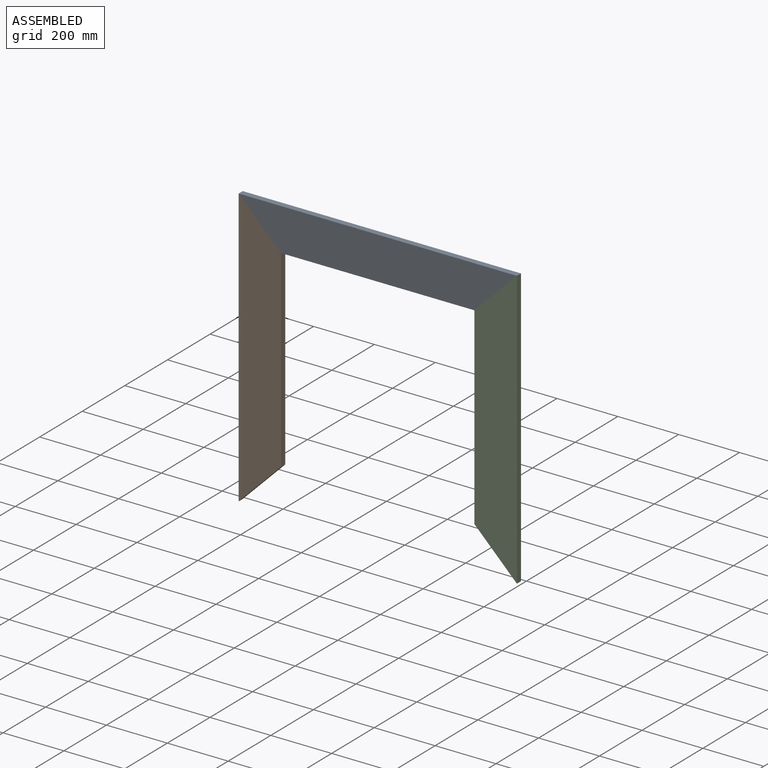
[diagram: assembled view]
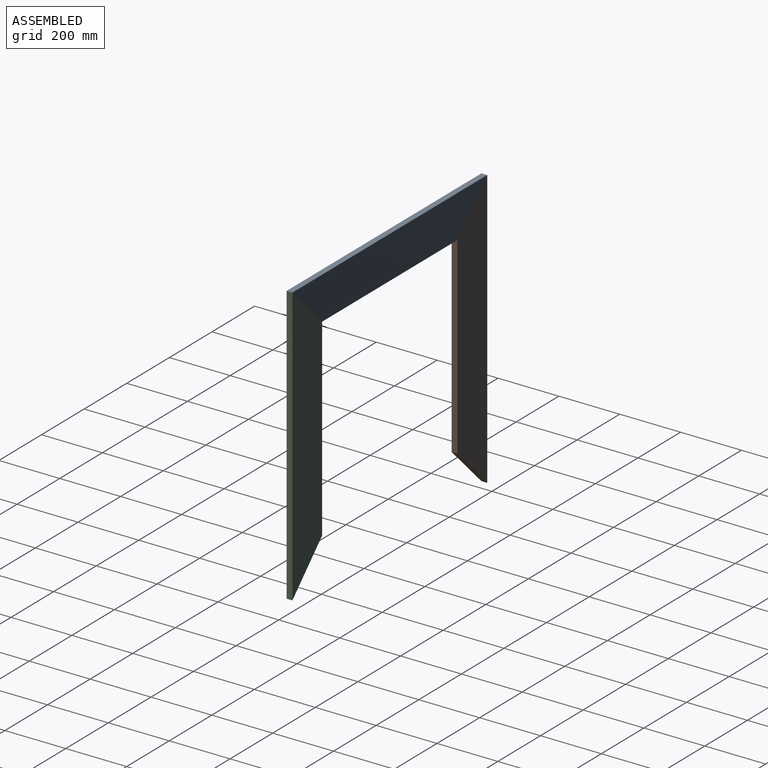
[diagram: assembled view, second angle]
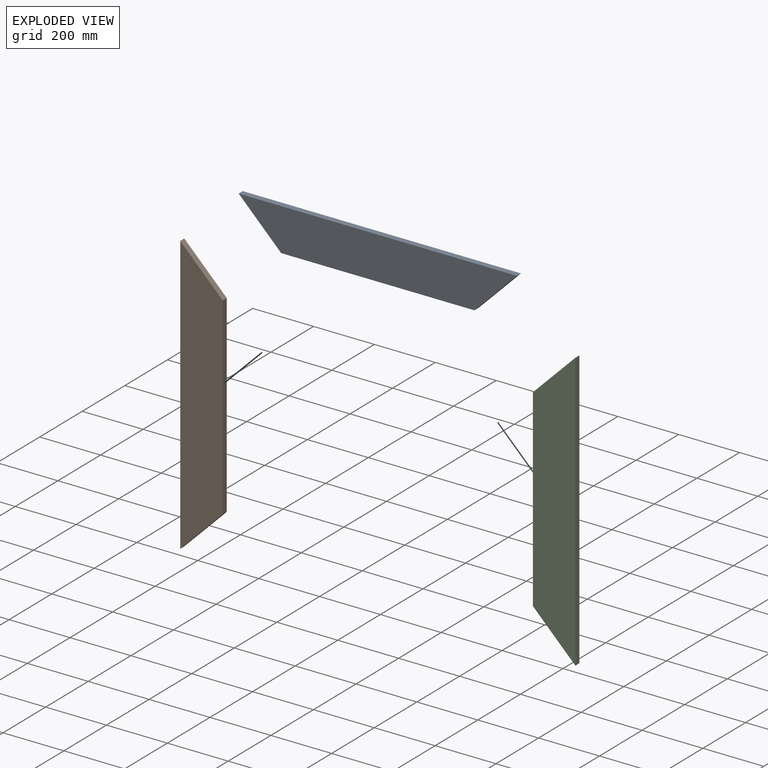
[diagram: exploded view]
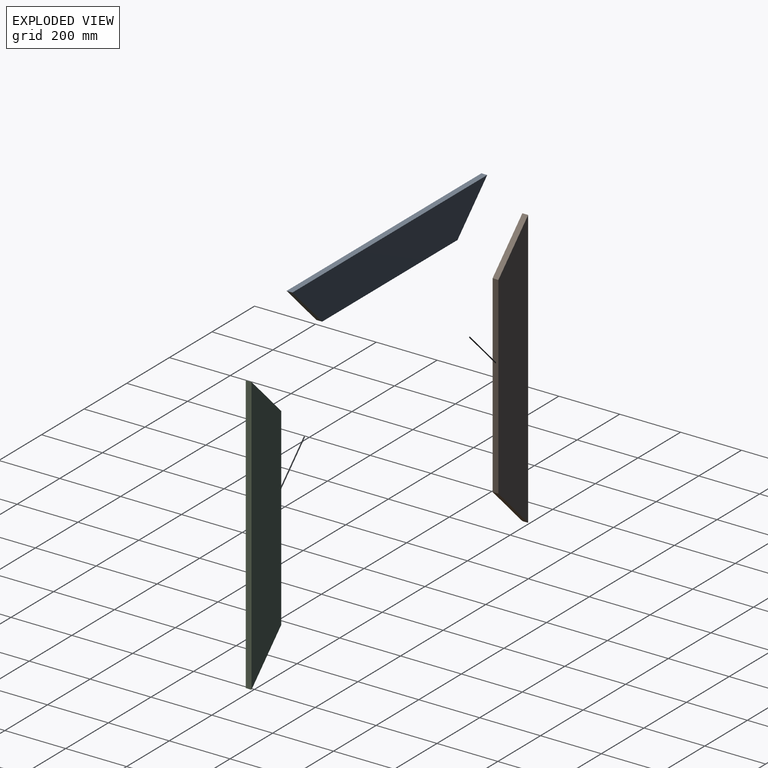
[diagram: exploded view, second angle]
ASSEMBLY  parts=3 mates=2
PART A: 6 faces, bbox 914.4x19.1x139.7 mm
  f0: plane 635x19.05mm, normal (0,0,1), area 12096.8mm2, adj f1,f3,f4,f5
  f1: plane 139.7x139.7mm, normal (-0.71,0,0.71), area 3763.6mm2, adj f0,f2,f4,f5
  f2: plane 914.4x19.05mm, normal (0,0,-1), area 17419.3mm2, adj f1,f3,f4,f5
  f3: plane 139.7x139.7mm, normal (0.71,0,0.71), area 3763.6mm2, adj f0,f2,f4,f5
  f4: plane 914.4x139.7mm, normal (0,1,0), area 108225.6mm2, adj f0,f1,f2,f3
  f5: plane 914.4x139.7mm, normal (0,-1,0), area 108225.6mm2, adj f0,f1,f2,f3
PART B: same geometry as A
PART C: same geometry as A
PLACE A rot(axis=(0,-1,0),180deg) t=(848.75,0,457.2)mm
PLACE B rot(axis=(0,1,0),90deg) t=(-65.65,0,457.2)mm
PLACE C rot(axis=(0,-1,0),90deg) t=(848.75,0,-457.2)mm
MATE fastened A.f1 <-> C.f3  axis (0.71,0,-0.71) through (778.9,9.52,387.35)mm
MATE fastened B.f1 <-> A.f3  axis (0.71,0,0.71) through (4.2,9.52,387.35)mm
